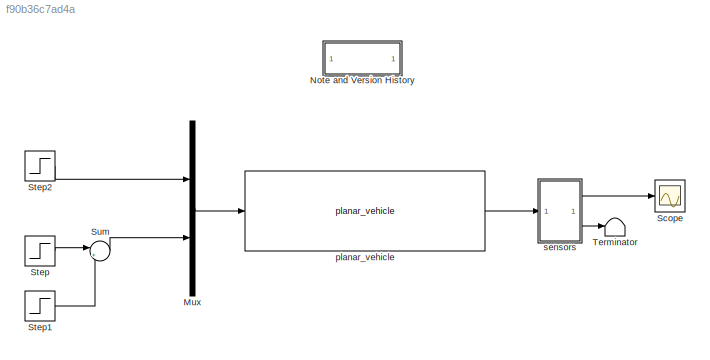
MODEL slx_f90b36c7ad4a
KIND model
CONFIG AbsTol = auto
CONFIG EnableMultiTasking = off
CONFIG FixedStep = auto
CONFIG MaxStep = deltaTMax
CONFIG MinStep = auto
CONFIG RelTol = 1e-3
CONFIG SampleTimeConstraint = Unconstrained
CONFIG SolverName = VariableStepAuto
CONFIG StartTime = 0.0
CONFIG StopTime = t_final
BLOCK [Mux] Mux
  DisplayOption = bar
  Inputs = 2
BLOCK [SubSystem] Note and Version History
BLOCK [Scope] Scope
  Floating = off
  NumInputPorts = 1
  ScopeSpecificationString = Simulink.scopes.TimeScopeBlockCfg('CurrentConfiguration', extmgr.ConfigurationSet(extmgr.Configuration('Core','General UI',true),extmgr.Configuration('Core','Source UI',true),extmgr.Configuration('Sources','WiredSimulink',true),extmgr.Configuration('Visuals','Time Domain',true,'SerializedDisplays',{struct('MinYLimReal','-1.22022','MaxYLimReal','10.98197','YLabelReal','','MinYLimMag','0.00000','Max...<+1388ch>
BLOCK [Step] Step
  SampleTime = 0
  Time = 10
BLOCK [Step] Step1
  After = -1
  SampleTime = 0
  Time = 30
BLOCK [Step] Step2
  After = 0
  Before = 1
  SampleTime = 0
  Time = 90
BLOCK [Sum] Sum
  Inputs = |++
BLOCK [Terminator] Terminator
BLOCK [Reference] planar_vehicle  REF=PlanarVehicle/planar_vehicle
  SourceBlock = PlanarVehicle/planar_vehicle
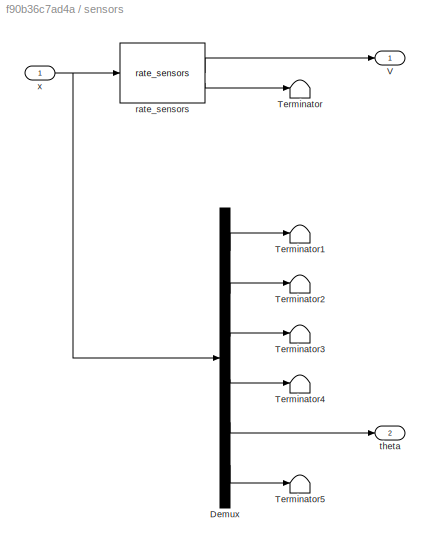
BLOCK [SubSystem] sensors
BLOCK [Demux] sensors/Demux
  Outputs = 6
BLOCK [Terminator] sensors/Terminator
BLOCK [Terminator] sensors/Terminator1
BLOCK [Terminator] sensors/Terminator2
BLOCK [Terminator] sensors/Terminator3
BLOCK [Terminator] sensors/Terminator4
BLOCK [Terminator] sensors/Terminator5
BLOCK [Outport] sensors/V
  VectorParamsAs1DForOutWhenUnconnected = off
BLOCK [Reference] sensors/rate_sensors  REF=PlanarVehicle/rate_sensors
  SourceBlock = PlanarVehicle/rate_sensors
BLOCK [Outport] sensors/theta
  Port = 2
  VectorParamsAs1DForOutWhenUnconnected = off
BLOCK [Inport] sensors/x
ANNOTATION Note and Version History: This has a dependency on the PlanarVehicle.slx library. See YouTube video entitled 'Obtaining and Using the MatlabLum Repository' at https://youtu.be/5ROS2-4ShmI . Christopher Lum <email> Version History 03/28/21: Created from final_project/p2. Greatly simplified for lecture notes 01/07/25: Updated notes.
LINE Mux:1 -> planar_vehicle:1
LINE Step1:1 -> Sum:2
LINE Step2:1 -> Mux:1
LINE Step:1 -> Sum:1
LINE Sum:1 -> Mux:2
LINE planar_vehicle:1 -> sensors:1
LINE sensors/Demux:1 -> sensors/Terminator1:1
LINE sensors/Demux:2 -> sensors/Terminator2:1
LINE sensors/Demux:3 -> sensors/Terminator3:1
LINE sensors/Demux:4 -> sensors/Terminator4:1
LINE sensors/Demux:5 -> sensors/theta:1
LINE sensors/Demux:6 -> sensors/Terminator5:1
LINE sensors/rate_sensors:1 -> sensors/V:1
LINE sensors/rate_sensors:2 -> sensors/Terminator:1
NET sensors/x:1 -> sensors/Demux:1, sensors/rate_sensors:1
LINE sensors:1 -> Scope:1
LINE sensors:2 -> Terminator:1
note: NET lines group one-source signal fan-out (src -> all destinations, sorted); 1:1 wires keep LINE
